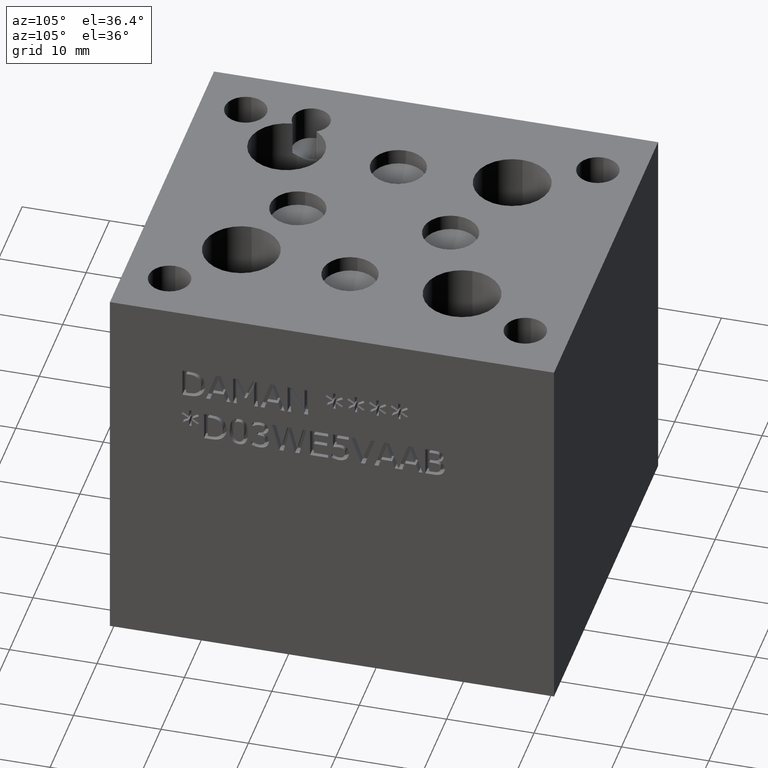
[diagram: clean part render]
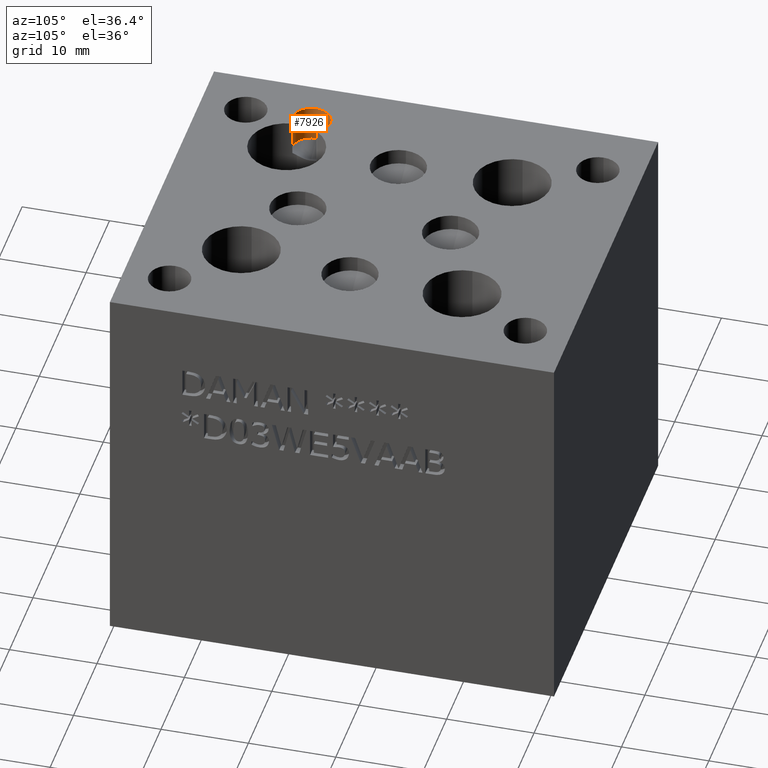
[diagram: same view with one face highlighted and labeled with its STEP entity id]
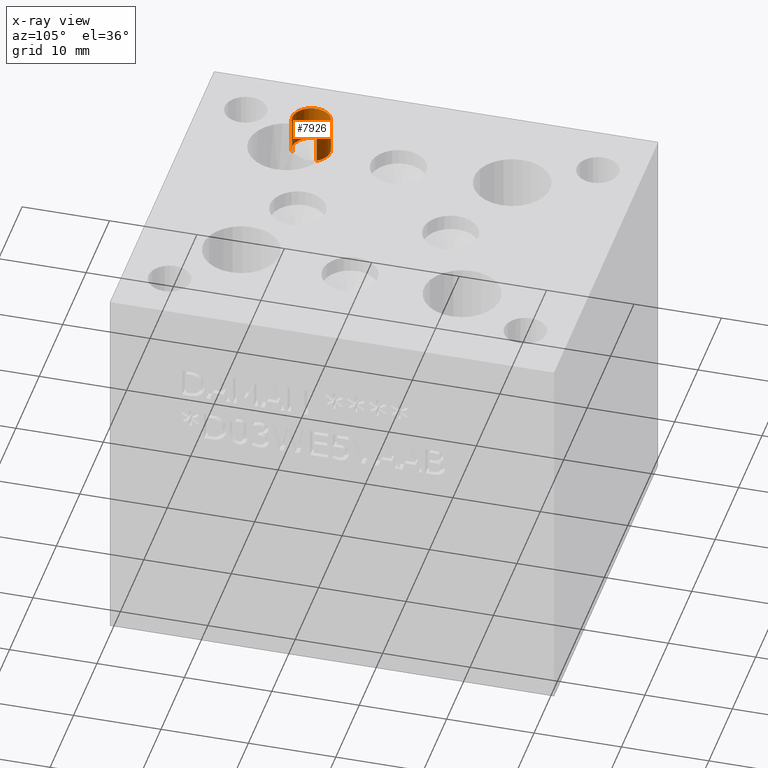
[diagram: x-ray of the same camera — body ghosted, the highlighted face saturated]
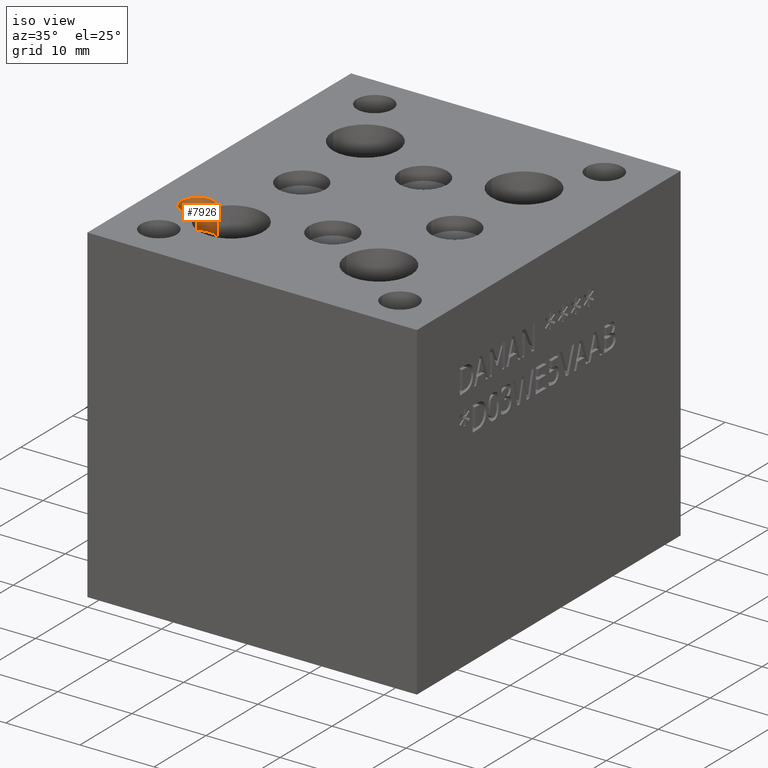
[diagram: same view with one face highlighted and labeled with its STEP entity id]
A machine part, auxiliary view. The second image highlights one B-rep face of the part: STEP entity #7926.
The next image is the same camera in x-ray: the body ghosted, the highlighted face saturated — about 0% of this face is hidden behind the body in this view.
A second angle (iso view) of the same face is appended — the face is thin or edge-on in the first view.
In plain terms, the highlighted cylindrical surface (edge-blend (fillet) strip) has radius 2.1844 mm, axis along (0, 0, 1).
Its self-contained STEP definition (entity closure, byte-faithful):
#114=CIRCLE('',#8335,2.1844);
#131=CIRCLE('',#8361,2.1844);
#132=CIRCLE('',#8362,2.1844);
#177=CYLINDRICAL_SURFACE('',#8363,2.1844);
#847=FACE_OUTER_BOUND('',#1294,.T.);
#1294=EDGE_LOOP('',(#6847,#6848,#6849,#6850,#6851));
#2105=LINE('',#13081,#2921);
#2107=LINE('',#13104,#2923);
#2921=VECTOR('',#9864,10.);
#2923=VECTOR('',#9866,10.);
#3628=VERTEX_POINT('',#13079);
#3629=VERTEX_POINT('',#13080);
#3631=VERTEX_POINT('',#13096);
#3632=VERTEX_POINT('',#13103);
#3679=VERTEX_POINT('',#13228);
#4688=EDGE_CURVE('',#3628,#3629,#2105,.T.);
#4692=EDGE_CURVE('',#3632,#3631,#2107,.T.);
#4726=EDGE_CURVE('',#3632,#3629,#114,.T.);
#4751=EDGE_CURVE('',#3628,#3679,#131,.T.);
#4753=EDGE_CURVE('',#3679,#3631,#132,.T.);
#6847=ORIENTED_EDGE('',*,*,#4688,.T.);
#6848=ORIENTED_EDGE('',*,*,#4726,.F.);
#6849=ORIENTED_EDGE('',*,*,#4692,.T.);
#6850=ORIENTED_EDGE('',*,*,#4753,.F.);
#6851=ORIENTED_EDGE('',*,*,#4751,.F.);
#7926=ADVANCED_FACE('',(#847),#177,.F.);
#8335=AXIS2_PLACEMENT_3D('',#13174,#9943,#9944);
#8361=AXIS2_PLACEMENT_3D('',#13229,#10003,#10004);
#8362=AXIS2_PLACEMENT_3D('',#13232,#10006,#10007);
#8363=AXIS2_PLACEMENT_3D('',#13233,#10008,#10009);
#9864=DIRECTION('',(0.,0.,1.));
#9866=DIRECTION('',(0.,0.,-1.));
#9943=DIRECTION('center_axis',(0.,0.,-1.));
#9944=DIRECTION('ref_axis',(1.,0.,0.));
#10003=DIRECTION('center_axis',(0.,0.,1.));
#10004=DIRECTION('ref_axis',(1.,0.,0.));
#10006=DIRECTION('center_axis',(0.,0.,1.));
#10007=DIRECTION('ref_axis',(1.,0.,0.));
#10008=DIRECTION('center_axis',(0.,0.,1.));
#10009=DIRECTION('ref_axis',(-0.971191213090663,0.238301547656506,0.));
#13079=CARTESIAN_POINT('',(7.84667365849293,13.8416190610278,40.41553));
#13080=CARTESIAN_POINT('',(7.84667365849293,13.8416190610278,44.45));
#13081=CARTESIAN_POINT('',(7.84667365849293,13.8416190610278,40.4876));
#13096=CARTESIAN_POINT('',(7.11674902016875,10.8668318557821,40.41553));
#13103=CARTESIAN_POINT('',(7.11674902016875,10.8668318557821,44.45));
#13104=CARTESIAN_POINT('',(7.11674902016875,10.8668318557821,40.4876));
#13174=CARTESIAN_POINT('Origin',(5.969,12.7254,44.45));
#13228=CARTESIAN_POINT('',(3.7846,12.7254,40.41553));
#13229=CARTESIAN_POINT('Origin',(5.969,12.7254,40.41553));
#13232=CARTESIAN_POINT('Origin',(5.969,12.7254,40.41553));
#13233=CARTESIAN_POINT('Origin',(5.969,12.7254,42.432765));